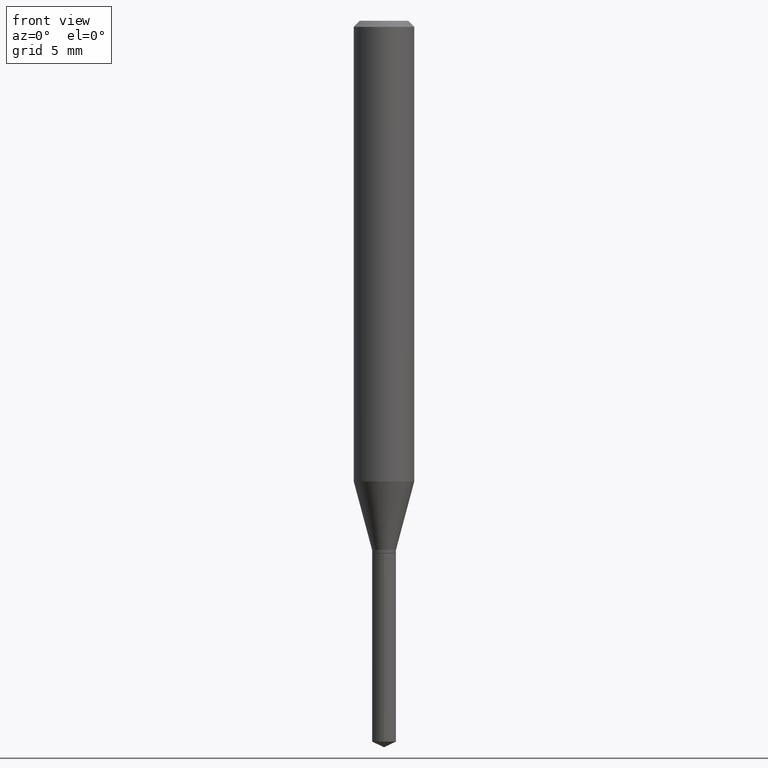
[diagram: clean part render]
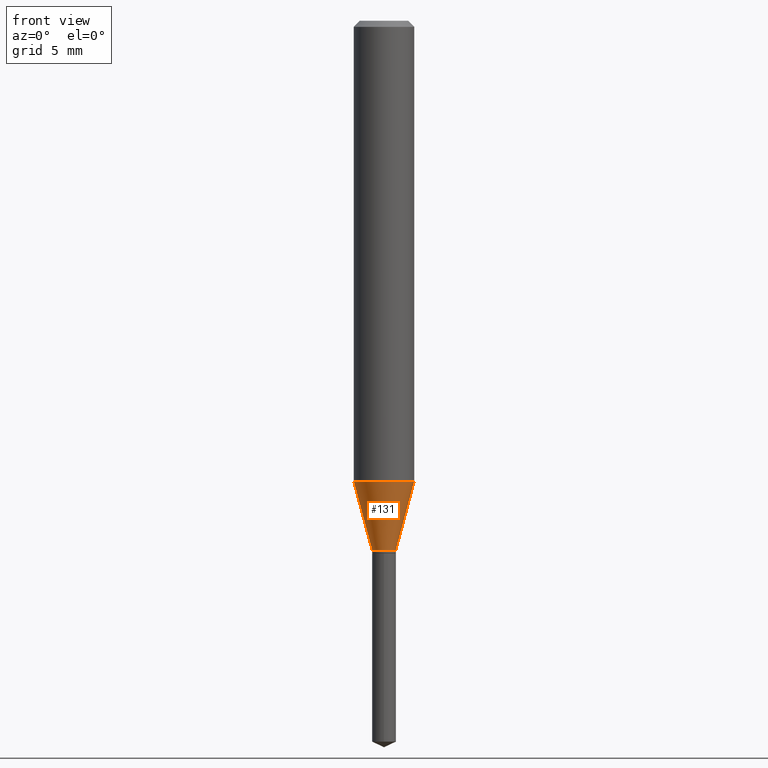
[diagram: same view with one face highlighted and labeled with its STEP entity id]
A machine part, front view. The second image highlights one B-rep face of the part: STEP entity #131.
In plain terms, the highlighted conical surface has half-angle 15 deg.
Its self-contained STEP definition (entity closure, byte-faithful):
#2 = CARTESIAN_POINT ( 'NONE',  ( -0.06250000000000012490, -2.876851681035814887E-15, -0.9511552743931396270 ) ) ;
#7 = CIRCLE ( 'NONE', #489, 0.02460000000000000034 ) ;
#8 = VERTEX_POINT ( 'NONE', #2 ) ;
#17 = VERTEX_POINT ( 'NONE', #262 ) ;
#31 = ORIENTED_EDGE ( 'NONE', *, *, #88, .F. ) ;
#45 = DIRECTION ( 'NONE',  ( 1.000000000000000000, -6.982962677686261977E-15, 0.000000000000000000 ) ) ;
#65 = VECTOR ( 'NONE', #407, 39.37007874015747433 ) ;
#77 = CARTESIAN_POINT ( 'NONE',  ( 0.02460000000000000034, -3.986573392691103322E-15, -1.092600000000000016 ) ) ;
#79 = AXIS2_PLACEMENT_3D ( 'NONE', #388, #471, #45 ) ;
#81 = CARTESIAN_POINT ( 'NONE',  ( 0.06250000000000012490, -3.757376058241271144E-15, -0.9511552743931396270 ) ) ;
#87 = LINE ( 'NONE', #151, #425 ) ;
#88 = EDGE_CURVE ( 'NONE', #17, #8, #87, .T. ) ;
#90 = ORIENTED_EDGE ( 'NONE', *, *, #221, .T. ) ;
#93 = ORIENTED_EDGE ( 'NONE', *, *, #422, .T. ) ;
#116 = DIRECTION ( 'NONE',  ( -0.2588190451025213501, 5.211531920934551042E-15, 0.9659258262890682012 ) ) ;
#131 = ADVANCED_FACE ( 'NONE', ( #199 ), #322, .T. ) ;
#135 = DIRECTION ( 'NONE',  ( 1.000000000000000000, -6.982962677686264344E-15, 0.000000000000000000 ) ) ;
#147 = EDGE_LOOP ( 'NONE', ( #31, #90, #93, #230 ) ) ;
#151 = CARTESIAN_POINT ( 'NONE',  ( -0.02460000000000000034, -3.639998997823036732E-15, -1.092600000000000016 ) ) ;
#174 = VERTEX_POINT ( 'NONE', #77 ) ;
#196 = CARTESIAN_POINT ( 'NONE',  ( 2.671919217637880494E-29, -3.814792510820021060E-15, -1.092600000000000016 ) ) ;
#199 = FACE_OUTER_BOUND ( 'NONE', #147, .T. ) ;
#221 = EDGE_CURVE ( 'NONE', #17, #174, #7, .T. ) ;
#230 = ORIENTED_EDGE ( 'NONE', *, *, #381, .F. ) ;
#249 = DIRECTION ( 'NONE',  ( -2.445468806185136597E-29, 3.491481338843145583E-15, 1.000000000000000000 ) ) ;
#253 = CARTESIAN_POINT ( 'NONE',  ( 0.02460000000000000034, -3.986573392691103322E-15, -1.092600000000000016 ) ) ;
#262 = CARTESIAN_POINT ( 'NONE',  ( -0.02460000000000000034, -3.652044608442045501E-15, -1.092600000000000016 ) ) ;
#263 = CIRCLE ( 'NONE', #280, 0.06250000000000012490 ) ;
#280 = AXIS2_PLACEMENT_3D ( 'NONE', #399, #249, #135 ) ;
#317 = DIRECTION ( 'NONE',  ( -2.445468806185136597E-29, 3.491481338843145583E-15, 1.000000000000000000 ) ) ;
#319 = LINE ( 'NONE', #253, #65 ) ;
#322 = CONICAL_SURFACE ( 'NONE', #79, 0.02460000000000000034, 0.2617993877991500740 ) ;
#356 = DIRECTION ( 'NONE',  ( 1.000000000000000000, -6.982962677686261977E-15, 0.000000000000000000 ) ) ;
#381 = EDGE_CURVE ( 'NONE', #8, #480, #263, .T. ) ;
#388 = CARTESIAN_POINT ( 'NONE',  ( 2.671919217637880494E-29, -3.814792510820021060E-15, -1.092600000000000016 ) ) ;
#399 = CARTESIAN_POINT ( 'NONE',  ( 2.326020553366887075E-29, -3.320940890885878686E-15, -0.9511552743931396270 ) ) ;
#407 = DIRECTION ( 'NONE',  ( 0.2588190451025213501, 1.565188264969621968E-15, 0.9659258262890682012 ) ) ;
#422 = EDGE_CURVE ( 'NONE', #174, #480, #319, .T. ) ;
#425 = VECTOR ( 'NONE', #116, 39.37007874015747433 ) ;
#471 = DIRECTION ( 'NONE',  ( -2.445468806185136597E-29, 3.491481338843145583E-15, 1.000000000000000000 ) ) ;
#480 = VERTEX_POINT ( 'NONE', #81 ) ;
#489 = AXIS2_PLACEMENT_3D ( 'NONE', #196, #317, #356 ) ;